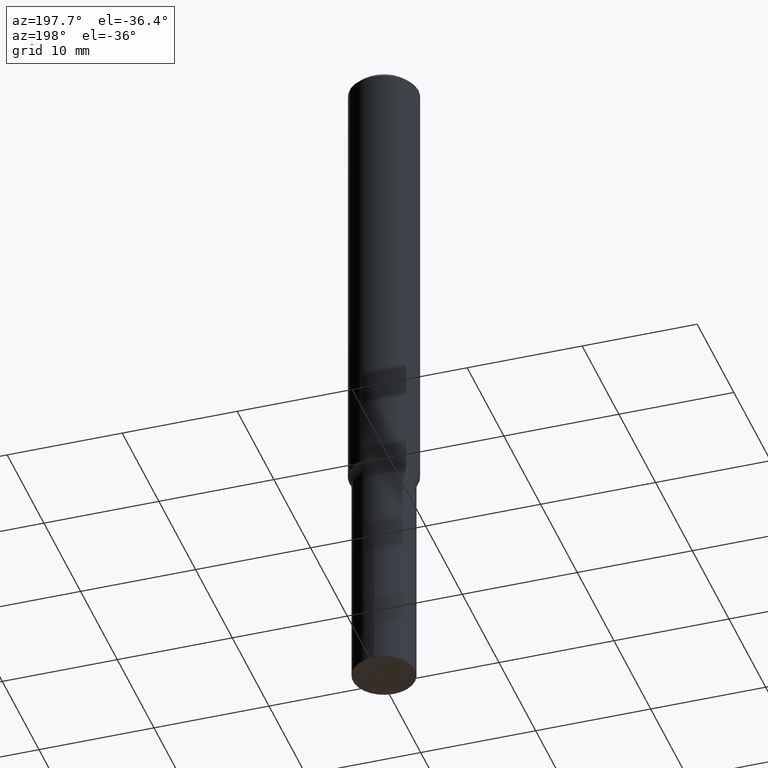
[diagram: clean part render]
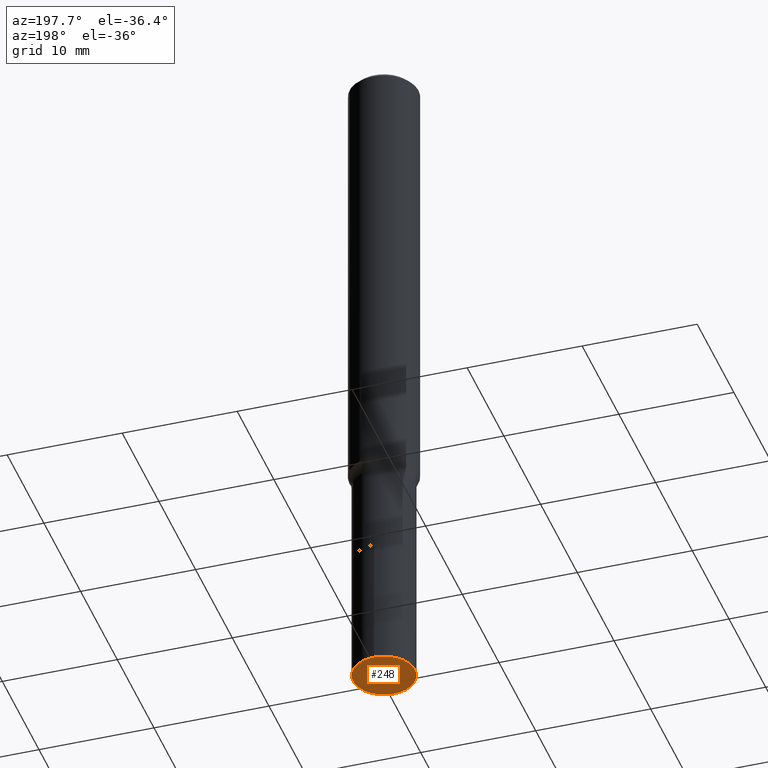
[diagram: same view with one face highlighted and labeled with its STEP entity id]
A machine part, auxiliary view. The second image highlights one B-rep face of the part: STEP entity #248.
In plain terms, the highlighted planar face has unit normal (-0, 0, 1).
Its self-contained STEP definition (entity closure, byte-faithful):
#17 = EDGE_CURVE ( 'NONE', #152, #56, #107, .T. ) ;
#47 = ORIENTED_EDGE ( 'NONE', *, *, #402, .F. ) ;
#56 = VERTEX_POINT ( 'NONE', #439 ) ;
#61 = ORIENTED_EDGE ( 'NONE', *, *, #17, .F. ) ;
#66 = CARTESIAN_POINT ( 'NONE',  ( 5.792487377357313463E-29, -8.224949339710422363E-15, -2.362200000000000522 ) ) ;
#75 = AXIS2_PLACEMENT_3D ( 'NONE', #279, #244, #322 ) ;
#88 = DIRECTION ( 'NONE',  ( -2.480044218410043629E-29, 3.441967380626826386E-15, 1.000000000000000000 ) ) ;
#107 = CIRCLE ( 'NONE', #122, 0.1062999999999999917 ) ;
#120 = FACE_OUTER_BOUND ( 'NONE', #316, .T. ) ;
#122 = AXIS2_PLACEMENT_3D ( 'NONE', #66, #326, #425 ) ;
#152 = VERTEX_POINT ( 'NONE', #444 ) ;
#162 = DIRECTION ( 'NONE',  ( -6.982962677686265922E-15, -1.000000000000000000, 3.441967380626826386E-15 ) ) ;
#184 = AXIS2_PLACEMENT_3D ( 'NONE', #344, #88, #162 ) ;
#244 = DIRECTION ( 'NONE',  ( -2.480044218410043909E-29, 3.441967380626826386E-15, 1.000000000000000000 ) ) ;
#248 = ADVANCED_FACE ( 'NONE', ( #120 ), #417, .F. ) ;
#279 = CARTESIAN_POINT ( 'NONE',  ( 5.792487377357313463E-29, -8.224949339710422363E-15, -2.362200000000000522 ) ) ;
#316 = EDGE_LOOP ( 'NONE', ( #61, #47 ) ) ;
#322 = DIRECTION ( 'NONE',  ( -6.982962677686265922E-15, -1.000000000000000000, 2.569941668545873564E-15 ) ) ;
#326 = DIRECTION ( 'NONE',  ( -2.480044218410043909E-29, 3.441967380626826386E-15, 1.000000000000000000 ) ) ;
#344 = CARTESIAN_POINT ( 'NONE',  ( 1.537527942236728561E-29, -1.431829342805434278E-14, -2.362200000000000077 ) ) ;
#402 = EDGE_CURVE ( 'NONE', #56, #152, #460, .T. ) ;
#417 = PLANE ( 'NONE',  #184 ) ;
#425 = DIRECTION ( 'NONE',  ( -6.982962677686265922E-15, -1.000000000000000000, 2.569941668545873564E-15 ) ) ;
#439 = CARTESIAN_POINT ( 'NONE',  ( 7.553069281130386022E-16, 0.1062999999999917622, -2.362200000000000966 ) ) ;
#444 = CARTESIAN_POINT ( 'NONE',  ( -7.422889326379921574E-16, -0.1063000000000082212, -2.362200000000000077 ) ) ;
#460 = CIRCLE ( 'NONE', #75, 0.1062999999999999917 ) ;